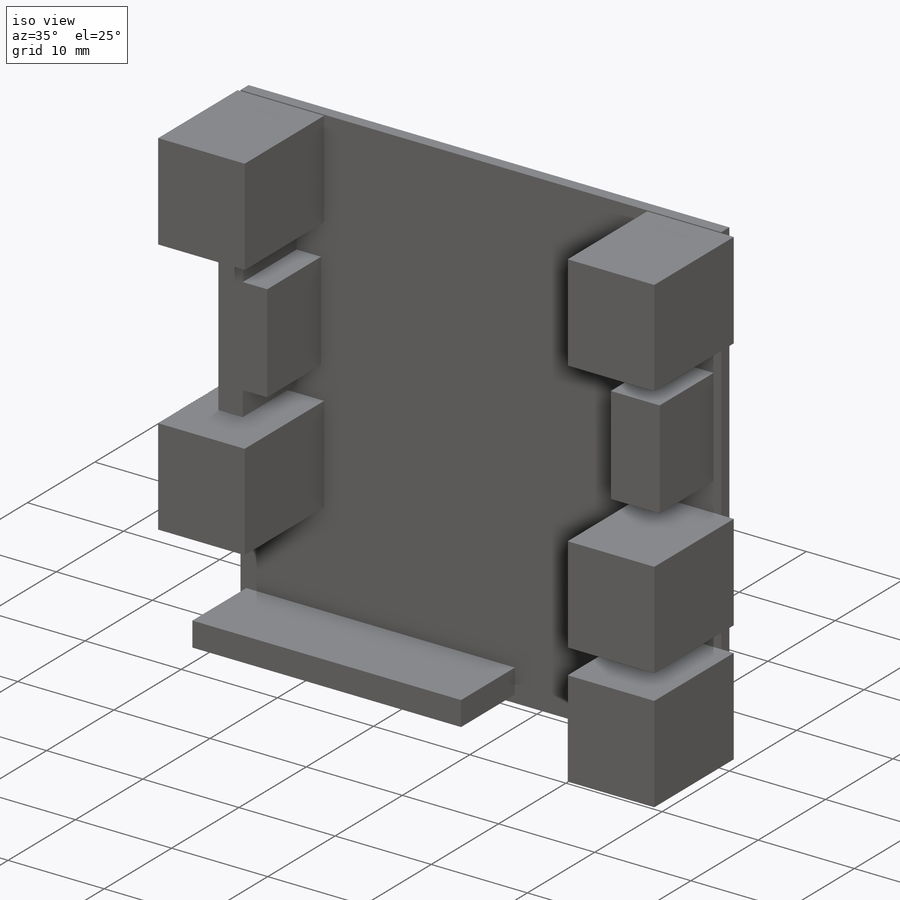
[diagram: iso view]
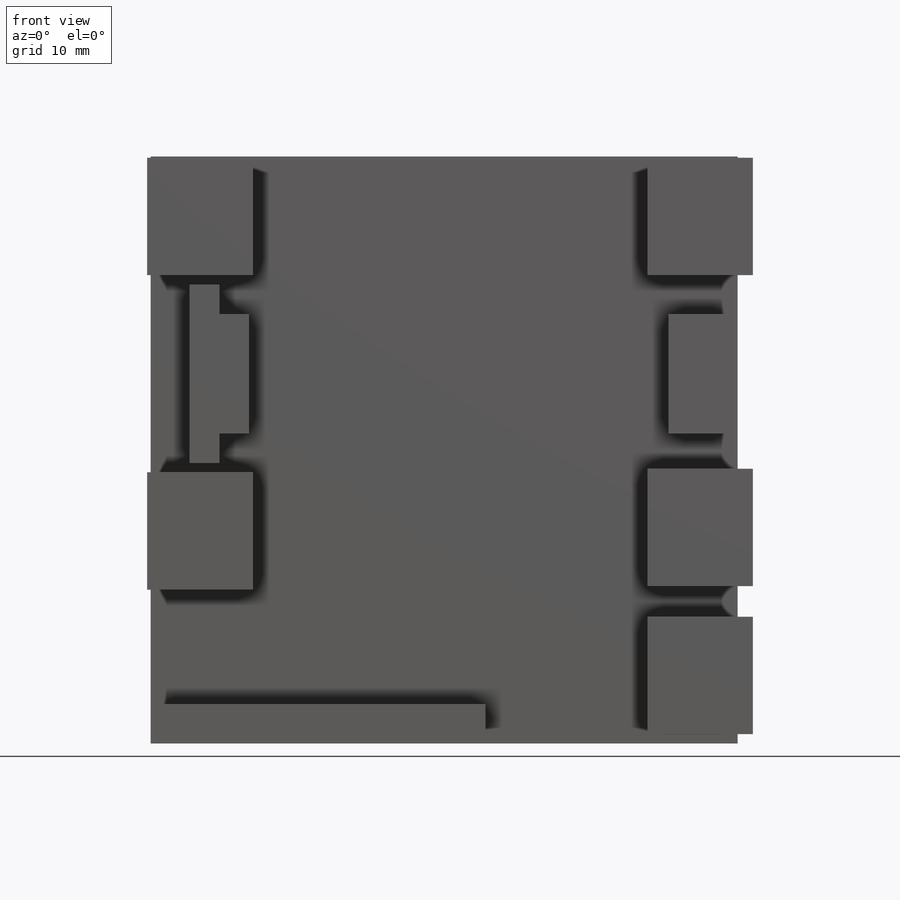
[diagram: front view]
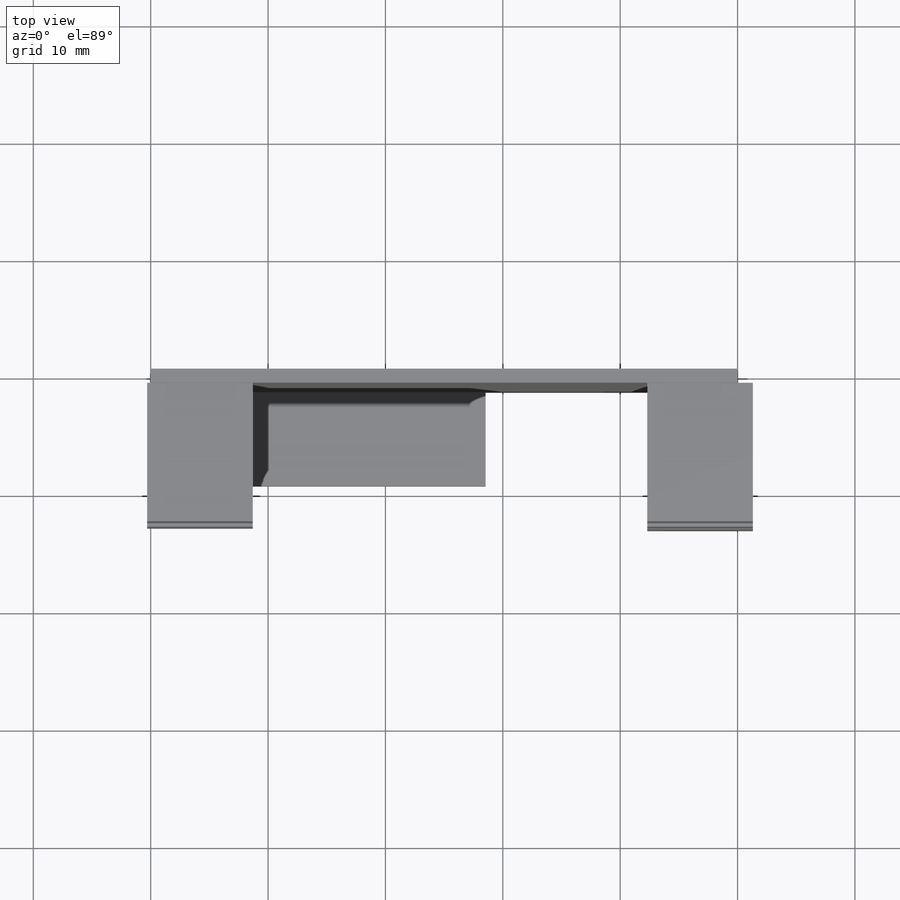
[diagram: top view]
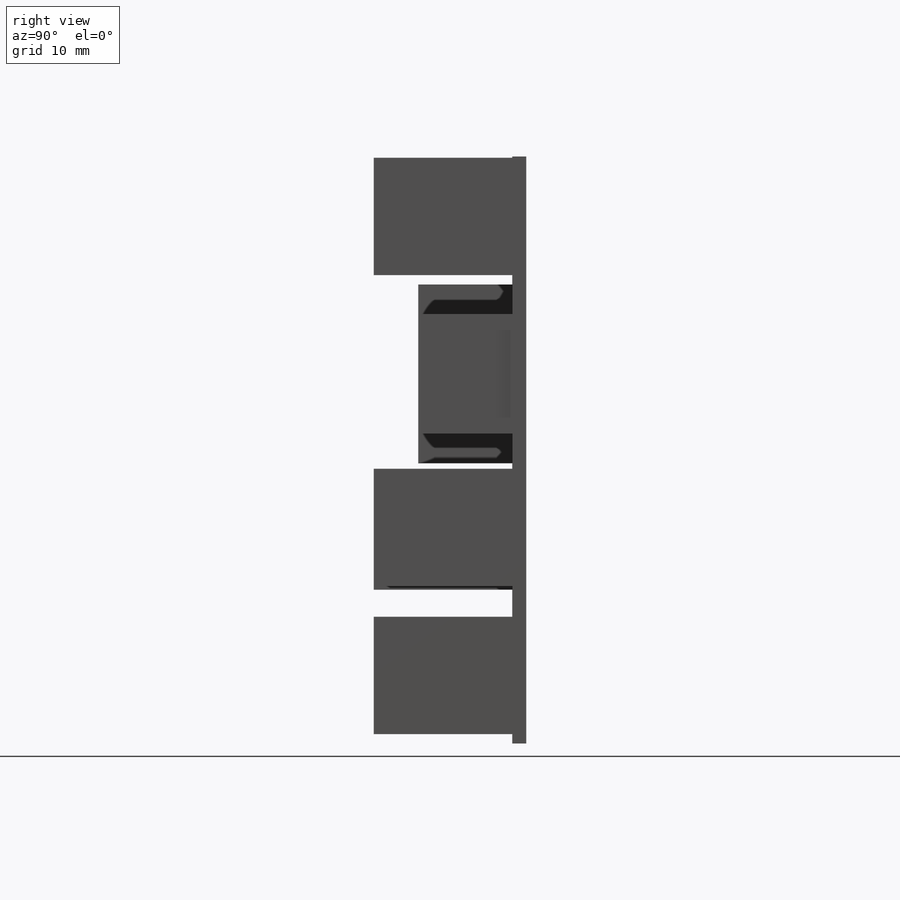
[diagram: right view]
SOLIDWORKS PART (.sldprt)
format: sldprt  version: not decoded by parser v0  size: 219,136 bytes
history: native  units: mm
features: plane x3, sketch x3, extrude x3, material x1 (+13 scaffold rows collapsed)
feature tree (23):
  scaffold x13  (default folders/planes/origin — collapsed)
  material  "Material <sin especificar>"
  plane  "Alzado"
  plane  "Planta"
  plane  "Vista lateral"
  sketch  "Croquis1"  dims[D1=50.0mm D2=50.0mm]
  extrude  "Saliente-Extruir1"  Depth=1.2mm
  sketch  "Croquis2"  dims[c1.D1=9.0mm c1.D2=10.0mm c1.D3=0.1mm c1.D4=1.3mm c1.D5=0.3mm c1.D6=16.8mm c1.D7=~10.246063mm c1.D8=9.0mm c2.D7=16.5mm c2.D8=2.6mm]
  extrude  "Saliente-Extruir2"  Depth=11.8mm
  sketch  "Croquis3"  dims[D1=2.54mm D2=2.54mm D3=15.24mm D4=10.16mm D5=0.8mm D6=5.08mm D7=3.3mm D8=0.8mm D9=27.94mm D10=0.8mm D11=0.6mm]
  extrude  "Saliente-Extruir3"  Depth=8mm
decode coverage: 6 of 6 modeling features carry decoded parameters
note: ~ marks probable driven/reference dimensions
note: suppression state not decoded; provenance and decode notes live in map.json
